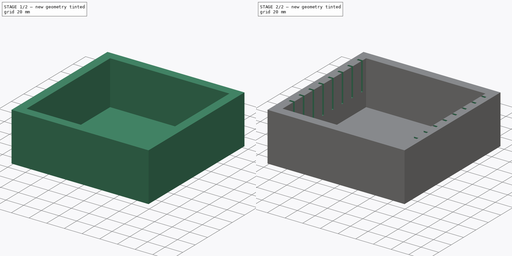
[diagram: build sequence overview — one tinted view per stage of 2, left to right]
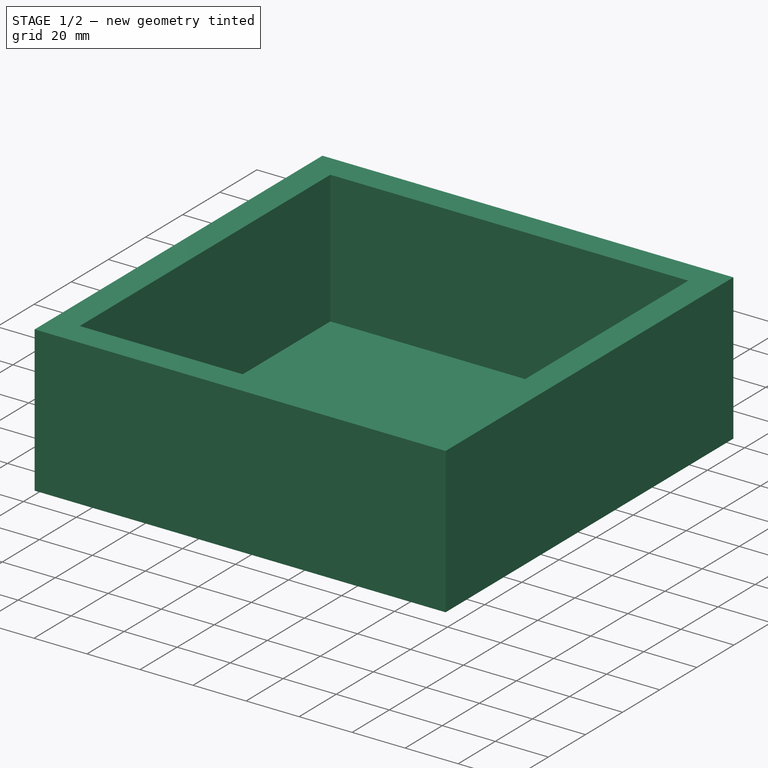
[diagram: stage 1 of 2 — iso view after this stage's code; geometry added in this stage tinted green]
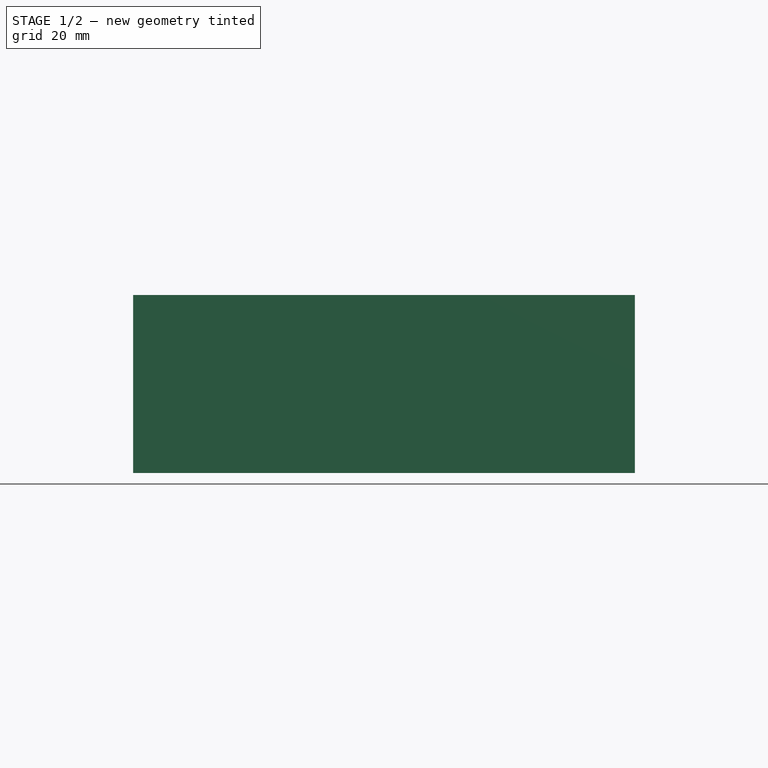
[diagram: stage 1 of 2 — front view after this stage's code; geometry added in this stage tinted green]
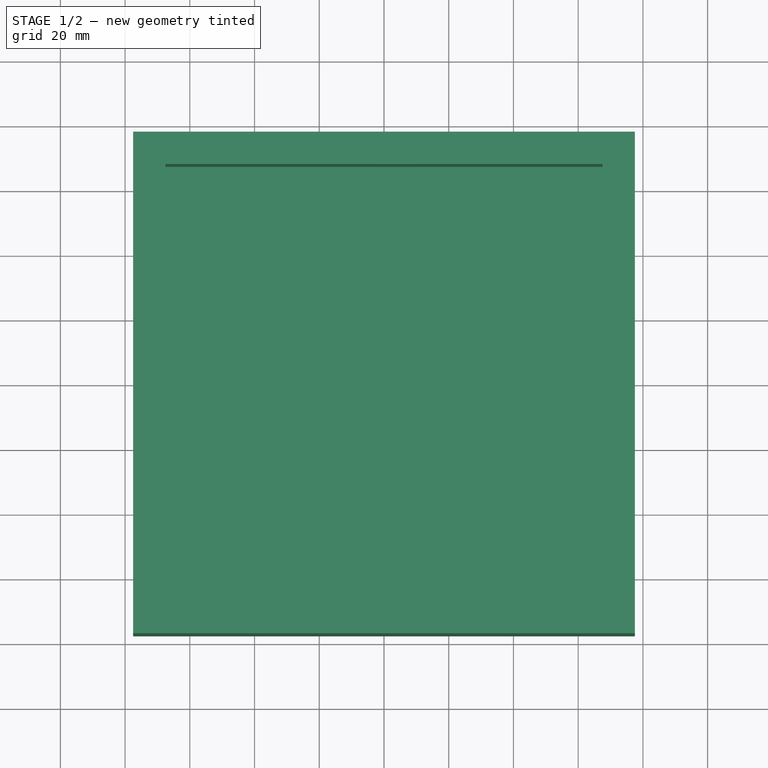
[diagram: stage 1 of 2 — top view after this stage's code; geometry added in this stage tinted green]
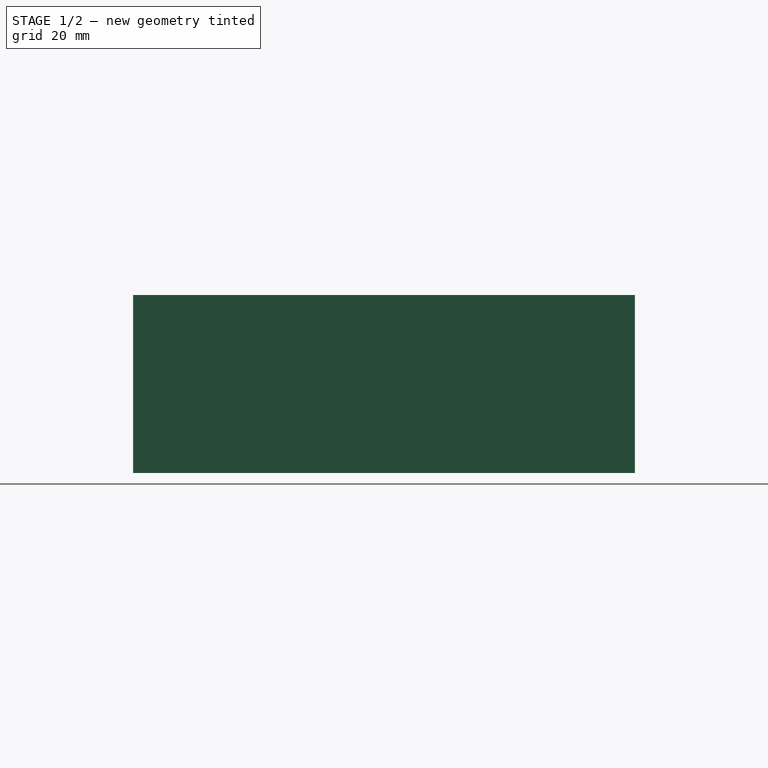
[diagram: stage 1 of 2 — right view after this stage's code; geometry added in this stage tinted green]
FCSTD DOCUMENT  (FreeCAD 0.20R29603 (Git))
Label: Door Hinge Router Template_Case_Top
License: All rights reserved
LicenseURL: http://en.wikipedia.org/wiki/All_rights_reserved
objects: Sketcher::SketchObject×3, PartDesign::Pocket×2, PartDesign::Pad×1, PartDesign::LinearPattern×1, PartDesign::Body×1, App::Part×1
note: 11 computed .brp shape members not serialized (recipe doc carries the construction recipe); baked Part::Feature solids carry a one-line shape summary decoded from their .brp

FEATURE [Sketcher::SketchObject] Sketch
  FullyConstrained = true
  MapMode = 5
  Support = -> [XY_Plane]
  sketch-geometry (5):
    g0: LineSegment StartX=-77.5 StartY=77.5 StartZ=0 EndX=-77.5 EndY=-77.5 EndZ=0
    g1: LineSegment StartX=-77.5 StartY=-77.5 StartZ=0 EndX=77.5 EndY=-77.5 EndZ=0
    g2: LineSegment StartX=77.5 StartY=-77.5 StartZ=0 EndX=77.5 EndY=77.5 EndZ=0
    g3: LineSegment StartX=77.5 StartY=77.5 StartZ=0 EndX=-77.5 EndY=77.5 EndZ=0
    g4: GeomPoint X=0 Y=0 Z=0
  constraints (12):
    c: Coincident(g0,g1)
    c: Coincident(g1,g2)
    c: Coincident(g2,g3)
    c: Coincident(g3,g0)
    c: Horizontal(g1)
    c: Horizontal(g3)
    c: Vertical(g0)
    c: Vertical(g2)
    c: Symmetric(g1,g0,g4)
    c: Coincident(g4,g-1)
    c: DistanceX(g3,g3) = 155
    c: DistanceY(g2,g2) = 155
FEATURE [PartDesign::Pad] Pad
  Direction = (0,0,1)
  Length = 55
  Length2 = 10
  Profile = -> Sketch
  ReferenceAxis = -> Sketch [N_Axis]
  Type = 0
FEATURE [Sketcher::SketchObject] Sketch001
  AttachmentOffset = pos=(0,0,115) rot=(0,0,1;0rad)
  FullyConstrained = true
  MapMode = 5
  Placement = pos=(0,0,115) rot=(0,0,1;0rad)
  Support = -> [XY_Plane]
  sketch-geometry (5):
    g0: LineSegment StartX=-67.5 StartY=67.5 StartZ=0 EndX=-67.5 EndY=-67.5 EndZ=0
    g1: LineSegment StartX=-67.5 StartY=-67.5 StartZ=0 EndX=67.5 EndY=-67.5 EndZ=0
    g2: LineSegment StartX=67.5 StartY=-67.5 StartZ=0 EndX=67.5 EndY=67.5 EndZ=0
    g3: LineSegment StartX=67.5 StartY=67.5 StartZ=0 EndX=-67.5 EndY=67.5 EndZ=0
    g4: GeomPoint X=0 Y=0 Z=0
  constraints (12):
    c: Coincident(g0,g1)
    c: Coincident(g1,g2)
    c: Coincident(g2,g3)
    c: Coincident(g3,g0)
    c: Horizontal(g1)
    c: Horizontal(g3)
    c: Vertical(g0)
    c: Vertical(g2)
    c: Symmetric(g1,g0,g4)
    c: Coincident(g4,g-1)
    c: DistanceX(g3,g3) = 135
    c: DistanceY(g2,g2) = 135
FEATURE [PartDesign::Pocket] Pocket
  BaseFeature = -> Pad
  Direction = (0,0,-1)
  Length = 110
  Length2 = 5
  Profile = -> Sketch001
  ReferenceAxis = -> Sketch001 [N_Axis]
  Type = 0
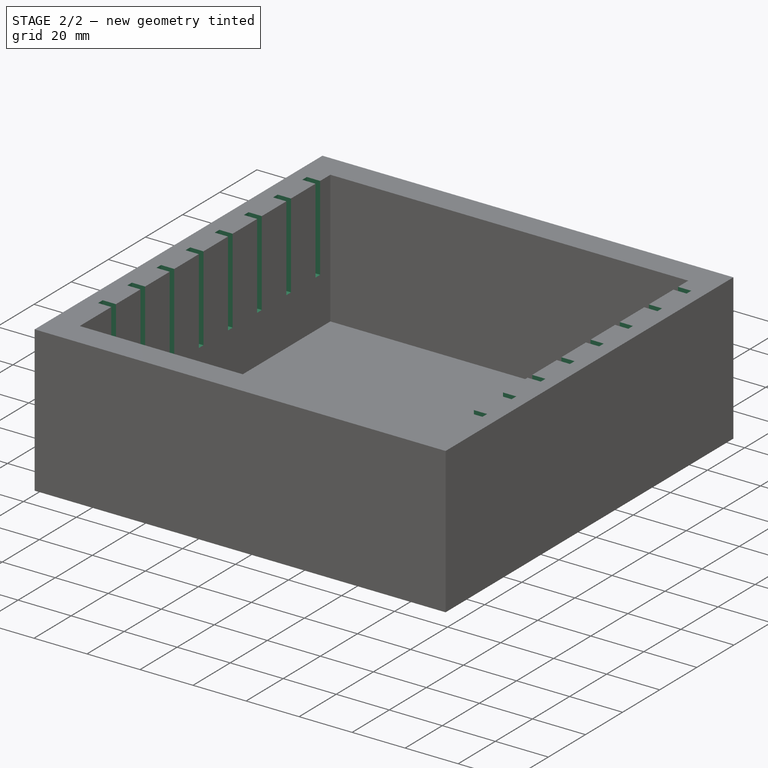
[diagram: stage 2 of 2 — iso view after this stage's code; geometry added in this stage tinted green]
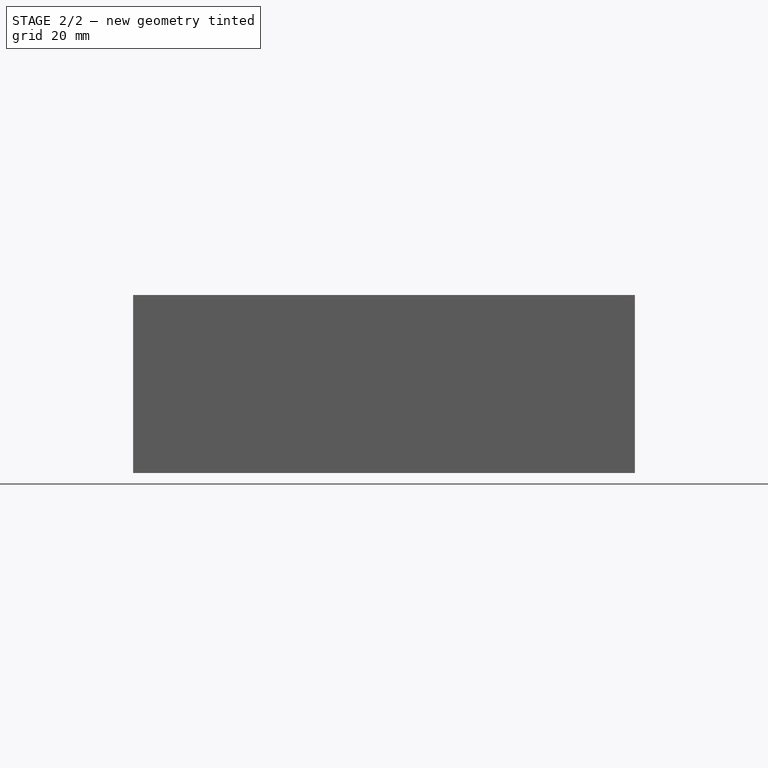
[diagram: stage 2 of 2 — front view after this stage's code; geometry added in this stage tinted green]
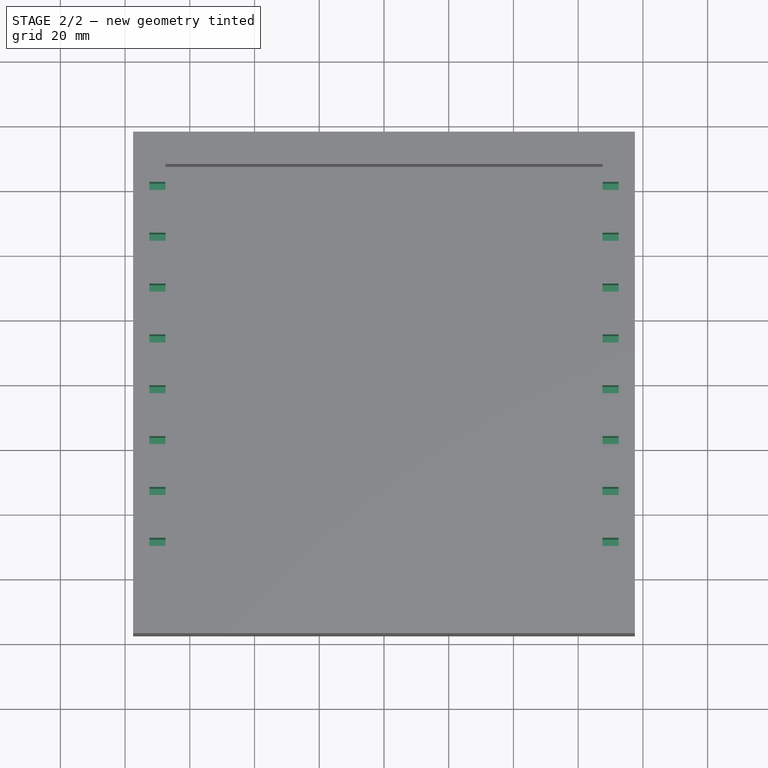
[diagram: stage 2 of 2 — top view after this stage's code; geometry added in this stage tinted green]
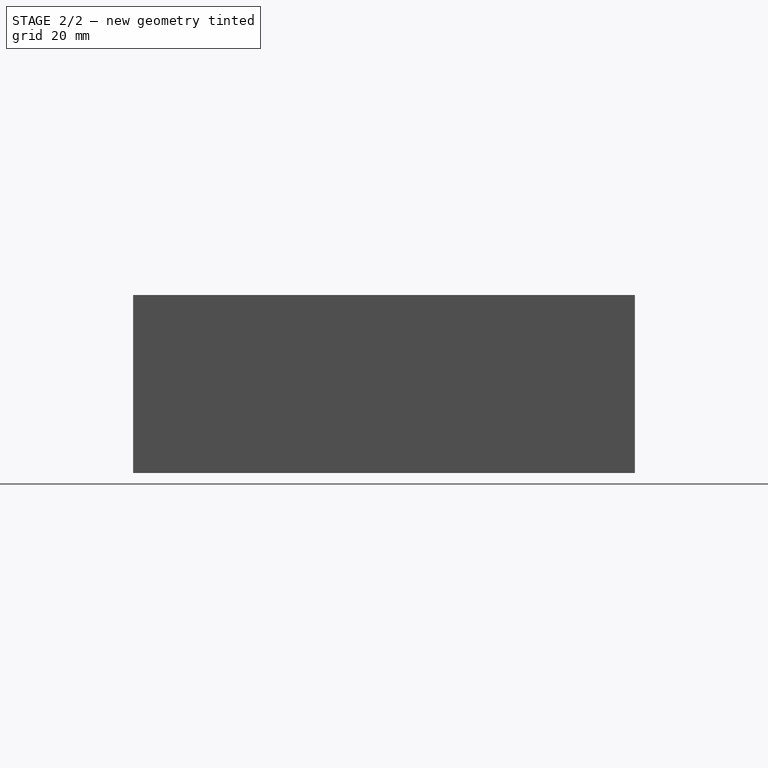
[diagram: stage 2 of 2 — right view after this stage's code; geometry added in this stage tinted green]
FEATURE [Sketcher::SketchObject] Sketch002
  AttachmentOffset = pos=(0,0,115) rot=(0,0,1;0rad)
  ExternalGeometry = -> [Pocket]
  FullyConstrained = true
  MapMode = 5
  Placement = pos=(0,0,115) rot=(0,0,1;0rad)
  Support = -> [XY_Plane]
  sketch-geometry (4):
    g0: LineSegment StartX=-72.5 StartY=62 StartZ=0 EndX=72.5 EndY=62 EndZ=0
    g1: LineSegment StartX=72.5 StartY=62 StartZ=0 EndX=72.5 EndY=59.5 EndZ=0
    g2: LineSegment StartX=72.5 StartY=59.5 StartZ=0 EndX=-72.5 EndY=59.5 EndZ=0
    g3: LineSegment StartX=-72.5 StartY=59.5 StartZ=0 EndX=-72.5 EndY=62 EndZ=0
  constraints (12):
    c: Coincident(g0,g1)
    c: Coincident(g1,g2)
    c: Coincident(g2,g3)
    c: Coincident(g3,g0)
    c: Horizontal(g0)
    c: Horizontal(g2)
    c: Vertical(g1)
    c: Vertical(g3)
    c: DistanceX(g0,g0) = 145
    c: DistanceY(g1,g1) = 2.5
    c: DistanceX(g2,g-1) = 72.5
    c: DistanceY(g-1,g0) = 62
FEATURE [PartDesign::Pocket] Pocket001
  BaseFeature = -> Pocket
  Direction = (0,0,-1)
  Length = 92
  Length2 = 5
  Profile = -> Sketch002
  ReferenceAxis = -> Sketch002 [N_Axis]
  Type = 0
FEATURE [PartDesign::LinearPattern] LinearPattern
  BaseFeature = -> Pocket001
  Direction = -> Y_Axis
  Length = 110
  Occurrences = 8
  Originals = -> [Pocket001]
  Reversed = true
FEATURE [PartDesign::Body] Body
  Group = -> [Sketch,Pad,Sketch001,Pocket,Sketch002,Pocket001,LinearPattern]
  Origin = -> Origin
  Tip = -> LinearPattern
FEATURE [App::Part] Part
  Group = -> [Body]
  Origin = -> Origin001
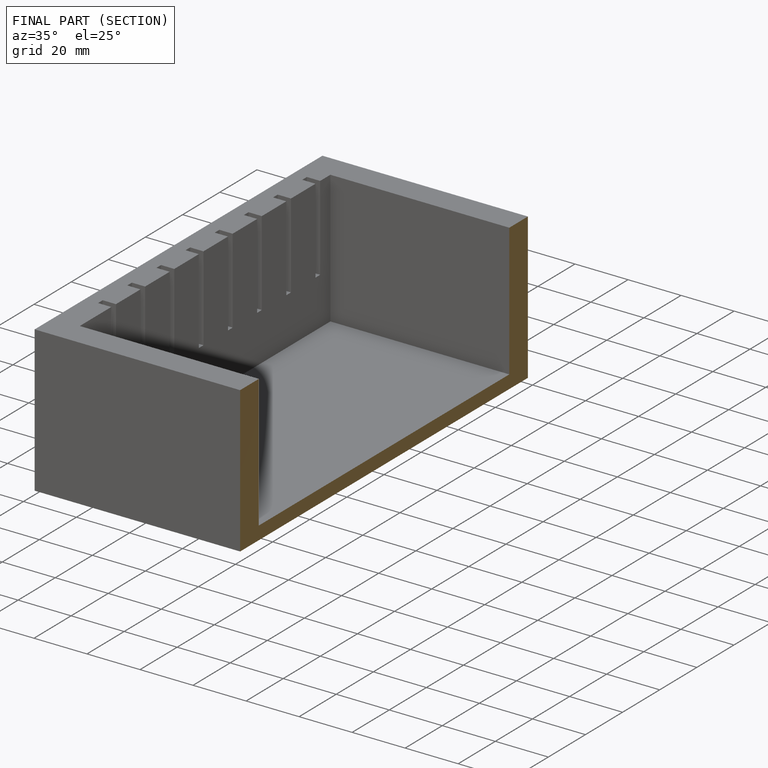
[diagram: finished part — half-section view (interior)]
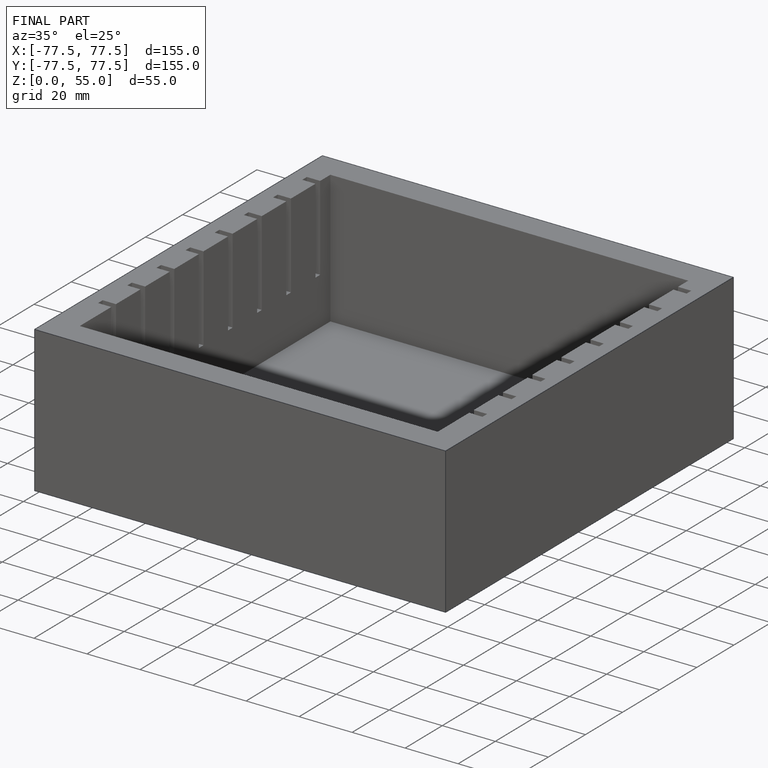
[diagram: finished part — iso view with bounding-box wireframe]
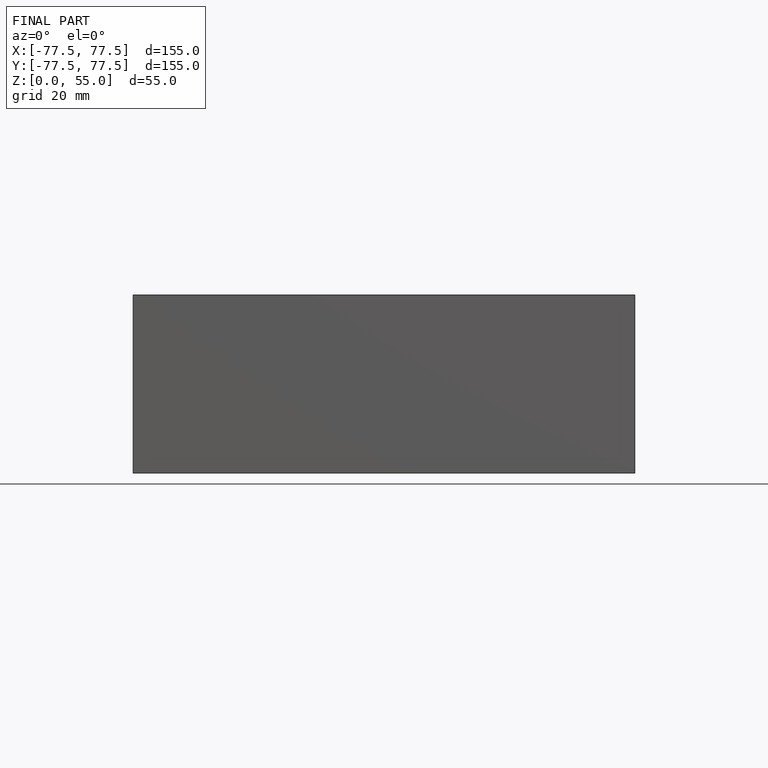
[diagram: finished part — front view with bounding-box wireframe]
